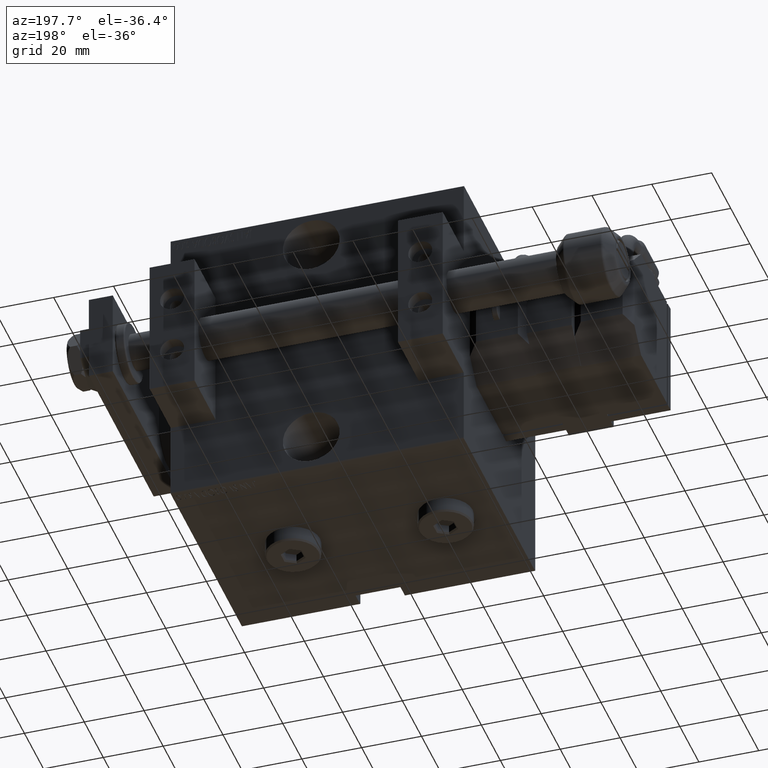
[diagram: clean part render]
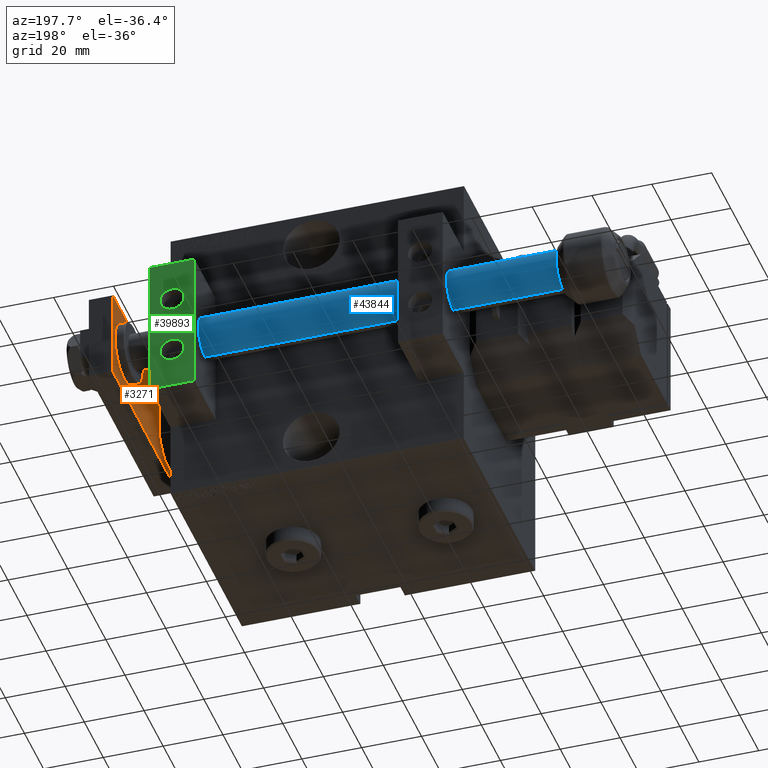
[diagram: same view with three faces highlighted in distinct colors, each labeled with its STEP entity id]
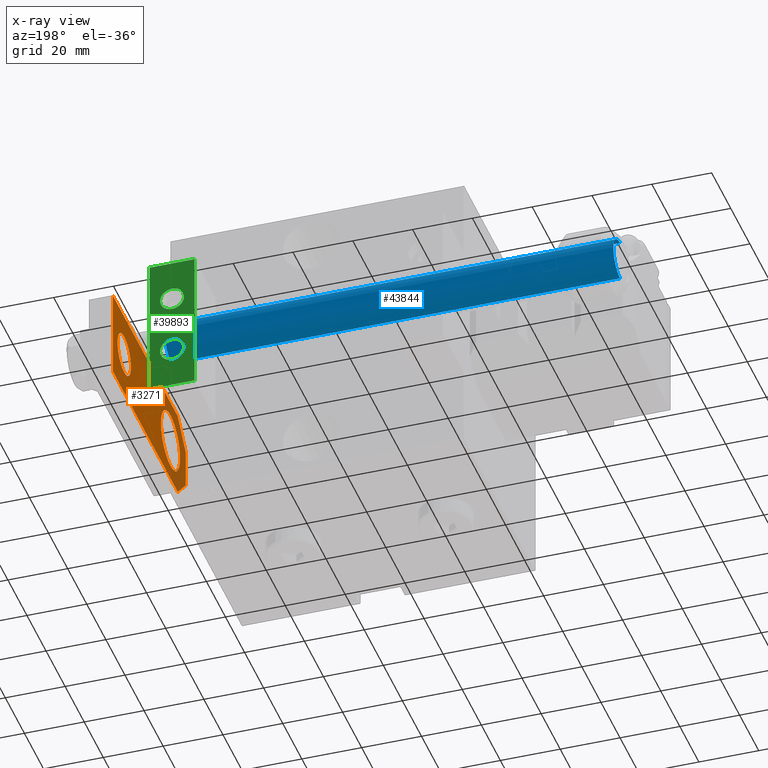
[diagram: x-ray of the same camera — body ghosted, the three highlighted faces saturated]
A machine part, auxiliary view with three faces highlighted in distinct colors.
The next image is the same camera in x-ray (body ghosted, the three faces saturated) — at least one of them is partly hidden behind the body in this view.
Their STEP definitions:

[orange] entity #3271 — the highlighted planar face has unit normal (1, 0, -0).
#496 = VERTEX_POINT ( 'NONE', #3571 ) ;
#993 = VERTEX_POINT ( 'NONE', #22382 ) ;
#1018 = EDGE_CURVE ( 'NONE', #993, #46645, #30414, .T. ) ;
#1646 = DIRECTION ( 'NONE',  ( 1.000000000000000000, 0.000000000000000000, 0.000000000000000000 ) ) ;
#3197 = DIRECTION ( 'NONE',  ( 0.000000000000000000, 0.000000000000000000, 1.000000000000000000 ) ) ;
#3271 = ADVANCED_FACE ( 'NONE', ( #28020, #20498, #12477 ), #47987, .F. ) ;
#3571 = CARTESIAN_POINT ( 'NONE',  ( -7.000000000000002665, 64.50000000000000000, 0.000000000000000000 ) ) ;
#4935 = EDGE_CURVE ( 'NONE', #19267, #12156, #18924, .T. ) ;
#5240 = EDGE_CURVE ( 'NONE', #6810, #26326, #9690, .T. ) ;
#5496 = EDGE_CURVE ( 'NONE', #12156, #19267, #14013, .T. ) ;
#5803 = CARTESIAN_POINT ( 'NONE',  ( -14.99999999999999822, 76.50000000000000000, 0.000000000000000000 ) ) ;
#6810 = VERTEX_POINT ( 'NONE', #29596 ) ;
#7253 = CARTESIAN_POINT ( 'NONE',  ( 15.00000000000000888, 9.629649721936179265E-32, 0.000000000000000000 ) ) ;
#7309 = CARTESIAN_POINT ( 'NONE',  ( 15.00000000000000355, 76.50000000000000000, 0.000000000000000000 ) ) ;
#7455 = EDGE_CURVE ( 'NONE', #7713, #26326, #28833, .T. ) ;
#7504 = LINE ( 'NONE', #7253, #40065 ) ;
#7713 = VERTEX_POINT ( 'NONE', #31658 ) ;
#8864 = ORIENTED_EDGE ( 'NONE', *, *, #25929, .T. ) ;
#9439 = EDGE_LOOP ( 'NONE', ( #8864, #13048 ) ) ;
#9637 = ORIENTED_EDGE ( 'NONE', *, *, #1018, .F. ) ;
#9690 = LINE ( 'NONE', #37177, #14792 ) ;
#9960 = CARTESIAN_POINT ( 'NONE',  ( 0.000000000000000000, 16.00000000000000000, 0.000000000000000000 ) ) ;
#10059 = CARTESIAN_POINT ( 'NONE',  ( 1.963948872468190046E-17, 64.50000000000000000, 0.000000000000000000 ) ) ;
#10319 = DIRECTION ( 'NONE',  ( 1.000000000000000000, 0.000000000000000000, 0.000000000000000000 ) ) ;
#10602 = VECTOR ( 'NONE', #16662, 1000.000000000000114 ) ;
#10659 = AXIS2_PLACEMENT_3D ( 'NONE', #46750, #20022, #11236 ) ;
#10898 = LINE ( 'NONE', #18925, #13352 ) ;
#10906 = CARTESIAN_POINT ( 'NONE',  ( -15.00000000000000711, 8.500000000000021316, 0.000000000000000000 ) ) ;
#11117 = ORIENTED_EDGE ( 'NONE', *, *, #31462, .T. ) ;
#11236 = DIRECTION ( 'NONE',  ( 1.000000000000000000, 0.000000000000000000, 0.000000000000000000 ) ) ;
#11403 = DIRECTION ( 'NONE',  ( -6.802837160693361638E-17, 1.000000000000000000, 0.000000000000000000 ) ) ;
#12156 = VERTEX_POINT ( 'NONE', #45176 ) ;
#12477 = FACE_BOUND ( 'NONE', #16604, .T. ) ;
#13048 = ORIENTED_EDGE ( 'NONE', *, *, #22338, .T. ) ;
#13352 = VECTOR ( 'NONE', #35005, 1000.000000000000000 ) ;
#13998 = CIRCLE ( 'NONE', #10659, 7.000000000000002665 ) ;
#14013 = CIRCLE ( 'NONE', #25584, 10.00000000000000178 ) ;
#14792 = VECTOR ( 'NONE', #1646, 1000.000000000000000 ) ;
#14930 = CARTESIAN_POINT ( 'NONE',  ( 0.000000000000000000, 16.00000000000000000, 0.000000000000000000 ) ) ;
#15784 = ORIENTED_EDGE ( 'NONE', *, *, #42686, .F. ) ;
#16604 = EDGE_LOOP ( 'NONE', ( #26120, #26516 ) ) ;
#16662 = DIRECTION ( 'NONE',  ( -0.7071067811865489050, -0.7071067811865461294, -0.000000000000000000 ) ) ;
#18014 = CARTESIAN_POINT ( 'NONE',  ( 15.00000000000000355, 76.50000000000000000, 0.000000000000000000 ) ) ;
#18924 = CIRCLE ( 'NONE', #28832, 10.00000000000000178 ) ;
#18925 = CARTESIAN_POINT ( 'NONE',  ( -6.500000000000007105, 9.629649721936179265E-32, 0.000000000000000000 ) ) ;
#19267 = VERTEX_POINT ( 'NONE', #47776 ) ;
#19695 = AXIS2_PLACEMENT_3D ( 'NONE', #50671, #20253, #27072 ) ;
#20022 = DIRECTION ( 'NONE',  ( 0.000000000000000000, 0.000000000000000000, 1.000000000000000000 ) ) ;
#20253 = DIRECTION ( 'NONE',  ( -0.000000000000000000, 0.000000000000000000, 1.000000000000000000 ) ) ;
#20271 = CIRCLE ( 'NONE', #28588, 7.000000000000002665 ) ;
#20498 = FACE_BOUND ( 'NONE', #9439, .T. ) ;
#22195 = DIRECTION ( 'NONE',  ( 1.000000000000000000, 0.000000000000000000, 0.000000000000000000 ) ) ;
#22338 = EDGE_CURVE ( 'NONE', #28969, #496, #20271, .T. ) ;
#22382 = CARTESIAN_POINT ( 'NONE',  ( -14.99999999999999822, 76.50000000000000000, 0.000000000000000000 ) ) ;
#25584 = AXIS2_PLACEMENT_3D ( 'NONE', #9960, #3197, #33824 ) ;
#25929 = EDGE_CURVE ( 'NONE', #496, #28969, #13998, .T. ) ;
#26079 = DIRECTION ( 'NONE',  ( 0.000000000000000000, 0.000000000000000000, 1.000000000000000000 ) ) ;
#26120 = ORIENTED_EDGE ( 'NONE', *, *, #5496, .T. ) ;
#26326 = VERTEX_POINT ( 'NONE', #34651 ) ;
#26516 = ORIENTED_EDGE ( 'NONE', *, *, #4935, .T. ) ;
#26695 = VERTEX_POINT ( 'NONE', #18014 ) ;
#27072 = DIRECTION ( 'NONE',  ( 1.000000000000000000, 0.000000000000000000, 0.000000000000000000 ) ) ;
#27271 = DIRECTION ( 'NONE',  ( -1.000000000000000000, 0.000000000000000000, 0.000000000000000000 ) ) ;
#28020 = FACE_OUTER_BOUND ( 'NONE', #49950, .T. ) ;
#28588 = AXIS2_PLACEMENT_3D ( 'NONE', #10059, #29495, #10319 ) ;
#28832 = AXIS2_PLACEMENT_3D ( 'NONE', #14930, #26079, #22195 ) ;
#28833 = LINE ( 'NONE', #41033, #10602 ) ;
#28969 = VERTEX_POINT ( 'NONE', #40447 ) ;
#29495 = DIRECTION ( 'NONE',  ( 0.000000000000000000, 0.000000000000000000, 1.000000000000000000 ) ) ;
#29596 = CARTESIAN_POINT ( 'NONE',  ( -6.500000000000007105, 9.629649721936179265E-32, 0.000000000000000000 ) ) ;
#30165 = DIRECTION ( 'NONE',  ( -1.360567432138672328E-16, -1.000000000000000000, 0.000000000000000000 ) ) ;
#30414 = LINE ( 'NONE', #5803, #36951 ) ;
#30457 = ORIENTED_EDGE ( 'NONE', *, *, #31119, .F. ) ;
#31119 = EDGE_CURVE ( 'NONE', #26695, #993, #42842, .T. ) ;
#31462 = EDGE_CURVE ( 'NONE', #6810, #46645, #10898, .T. ) ;
#31658 = CARTESIAN_POINT ( 'NONE',  ( 15.00000000000000888, 8.500000000000000000, 0.000000000000000000 ) ) ;
#33824 = DIRECTION ( 'NONE',  ( 1.000000000000000000, 0.000000000000000000, 0.000000000000000000 ) ) ;
#34651 = CARTESIAN_POINT ( 'NONE',  ( 6.499999999999972466, 9.629649721936179265E-32, 0.000000000000000000 ) ) ;
#35005 = DIRECTION ( 'NONE',  ( -0.7071067811865465735, 0.7071067811865484609, -0.000000000000000000 ) ) ;
#36043 = ORIENTED_EDGE ( 'NONE', *, *, #5240, .F. ) ;
#36951 = VECTOR ( 'NONE', #30165, 1000.000000000000000 ) ;
#37177 = CARTESIAN_POINT ( 'NONE',  ( -15.00000000000000888, 9.629649721936179265E-32, 0.000000000000000000 ) ) ;
#40065 = VECTOR ( 'NONE', #11403, 1000.000000000000000 ) ;
#40447 = CARTESIAN_POINT ( 'NONE',  ( 7.000000000000002665, 64.50000000000000000, 0.000000000000000000 ) ) ;
#41033 = CARTESIAN_POINT ( 'NONE',  ( 15.00000000000000888, 8.500000000000000000, 0.000000000000000000 ) ) ;
#42686 = EDGE_CURVE ( 'NONE', #7713, #26695, #7504, .T. ) ;
#42842 = LINE ( 'NONE', #7309, #47244 ) ;
#45176 = CARTESIAN_POINT ( 'NONE',  ( -10.00000000000000178, 16.00000000000000000, 0.000000000000000000 ) ) ;
#46645 = VERTEX_POINT ( 'NONE', #10906 ) ;
#46750 = CARTESIAN_POINT ( 'NONE',  ( 1.963948872468190046E-17, 64.50000000000000000, 0.000000000000000000 ) ) ;
#46980 = ORIENTED_EDGE ( 'NONE', *, *, #7455, .T. ) ;
#47244 = VECTOR ( 'NONE', #27271, 1000.000000000000000 ) ;
#47776 = CARTESIAN_POINT ( 'NONE',  ( 10.00000000000000178, 16.00000000000000000, 0.000000000000000000 ) ) ;
#47987 = PLANE ( 'NONE',  #19695 ) ;
#49950 = EDGE_LOOP ( 'NONE', ( #36043, #11117, #9637, #30457, #15784, #46980 ) ) ;
#50671 = CARTESIAN_POINT ( 'NONE',  ( 0.000000000000000000, 0.000000000000000000, 0.000000000000000000 ) ) ;

[blue] entity #43844 — the highlighted cylindrical surface (edge-blend (fillet) strip) has radius 7 mm, axis along (1, -0, -0).
#749 = EDGE_CURVE ( 'NONE', #42917, #46878, #22445, .T. ) ;
#2291 = DIRECTION ( 'NONE',  ( -0.000000000000000000, -0.000000000000000000, -1.000000000000000000 ) ) ;
#2544 = EDGE_CURVE ( 'NONE', #3997, #37020, #17184, .T. ) ;
#3128 = ORIENTED_EDGE ( 'NONE', *, *, #10648, .T. ) ;
#3176 = CIRCLE ( 'NONE', #46220, 7.000000000000000000 ) ;
#3373 = ORIENTED_EDGE ( 'NONE', *, *, #2544, .T. ) ;
#3408 = VERTEX_POINT ( 'NONE', #10634 ) ;
#3778 = CARTESIAN_POINT ( 'NONE',  ( 7.000000000000000000, 8.572527594031473190E-16, 151.9999999999999432 ) ) ;
#3795 = VECTOR ( 'NONE', #26588, 1000.000000000000000 ) ;
#3997 = VERTEX_POINT ( 'NONE', #24207 ) ;
#4923 = CIRCLE ( 'NONE', #51293, 7.000000000000000000 ) ;
#7147 = DIRECTION ( 'NONE',  ( 0.000000000000000000, 0.000000000000000000, -1.000000000000000000 ) ) ;
#8163 = DIRECTION ( 'NONE',  ( 1.000000000000000000, -1.776356839400250465E-15, 0.000000000000000000 ) ) ;
#8537 = EDGE_LOOP ( 'NONE', ( #3373, #11217, #44385, #22222, #44133, #3128 ) ) ;
#9501 = AXIS2_PLACEMENT_3D ( 'NONE', #46612, #2291, #26656 ) ;
#10266 = CARTESIAN_POINT ( 'NONE',  ( 0.000000000000000000, 0.000000000000000000, 151.9999999999999432 ) ) ;
#10446 = CARTESIAN_POINT ( 'NONE',  ( 0.000000000000000000, 0.000000000000000000, 2.000000000000029310 ) ) ;
#10634 = CARTESIAN_POINT ( 'NONE',  ( -0.4999999999999992784, 6.982120021884415273, 152.0000000000000000 ) ) ;
#10648 = EDGE_CURVE ( 'NONE', #3408, #3997, #4923, .T. ) ;
#10777 = CARTESIAN_POINT ( 'NONE',  ( -7.000000000000000000, 0.000000000000000000, 153.0000000000000000 ) ) ;
#11217 = ORIENTED_EDGE ( 'NONE', *, *, #49292, .T. ) ;
#11564 = CARTESIAN_POINT ( 'NONE',  ( 7.000000000000000000, 8.572527594031473190E-16, 2.000000000000029310 ) ) ;
#13961 = CARTESIAN_POINT ( 'NONE',  ( -7.000000000000000000, 0.000000000000000000, 151.9999999999999432 ) ) ;
#14496 = CARTESIAN_POINT ( 'NONE',  ( 7.000000000000000000, 8.572527594031473190E-16, 153.0000000000000000 ) ) ;
#15191 = CARTESIAN_POINT ( 'NONE',  ( -7.000000000000000000, 0.000000000000000000, 2.000000000000029310 ) ) ;
#17184 = CIRCLE ( 'NONE', #42880, 7.000000000000000000 ) ;
#21972 = VECTOR ( 'NONE', #30302, 1000.000000000000000 ) ;
#22222 = ORIENTED_EDGE ( 'NONE', *, *, #749, .F. ) ;
#22445 = LINE ( 'NONE', #10777, #3795 ) ;
#22512 = FACE_OUTER_BOUND ( 'NONE', #8537, .T. ) ;
#22869 = DIRECTION ( 'NONE',  ( 1.000000000000000000, 0.000000000000000000, 0.000000000000000000 ) ) ;
#24207 = CARTESIAN_POINT ( 'NONE',  ( 0.5000000000000041078, 6.982120021884470340, 151.9999999999999432 ) ) ;
#25571 = EDGE_CURVE ( 'NONE', #42917, #3408, #3176, .T. ) ;
#26067 = DIRECTION ( 'NONE',  ( 1.000000000000000000, 2.842170943040400743E-14, 0.000000000000000000 ) ) ;
#26588 = DIRECTION ( 'NONE',  ( -0.000000000000000000, -0.000000000000000000, -1.000000000000000000 ) ) ;
#26656 = DIRECTION ( 'NONE',  ( -1.000000000000000000, 0.000000000000000000, 0.000000000000000000 ) ) ;
#29323 = AXIS2_PLACEMENT_3D ( 'NONE', #10446, #50356, #22869 ) ;
#29542 = VERTEX_POINT ( 'NONE', #11564 ) ;
#30302 = DIRECTION ( 'NONE',  ( -0.000000000000000000, -0.000000000000000000, -1.000000000000000000 ) ) ;
#33959 = DIRECTION ( 'NONE',  ( 0.000000000000000000, 0.000000000000000000, -1.000000000000000000 ) ) ;
#34447 = CYLINDRICAL_SURFACE ( 'NONE', #9501, 7.000000000000000000 ) ;
#37020 = VERTEX_POINT ( 'NONE', #3778 ) ;
#42264 = EDGE_CURVE ( 'NONE', #29542, #46878, #49217, .T. ) ;
#42880 = AXIS2_PLACEMENT_3D ( 'NONE', #45098, #33959, #45876 ) ;
#42917 = VERTEX_POINT ( 'NONE', #13961 ) ;
#43183 = CARTESIAN_POINT ( 'NONE',  ( 0.000000000000000000, 0.000000000000000000, 151.9999999999999432 ) ) ;
#43844 = ADVANCED_FACE ( 'NONE', ( #22512 ), #34447, .T. ) ;
#44133 = ORIENTED_EDGE ( 'NONE', *, *, #25571, .T. ) ;
#44385 = ORIENTED_EDGE ( 'NONE', *, *, #42264, .T. ) ;
#45098 = CARTESIAN_POINT ( 'NONE',  ( 0.000000000000000000, 0.000000000000000000, 151.9999999999999432 ) ) ;
#45876 = DIRECTION ( 'NONE',  ( 1.000000000000000000, -1.776356839400250465E-15, 0.000000000000000000 ) ) ;
#46220 = AXIS2_PLACEMENT_3D ( 'NONE', #43183, #7147, #8163 ) ;
#46612 = CARTESIAN_POINT ( 'NONE',  ( 0.000000000000000000, 0.000000000000000000, 153.0000000000000000 ) ) ;
#46878 = VERTEX_POINT ( 'NONE', #15191 ) ;
#49217 = CIRCLE ( 'NONE', #29323, 7.000000000000000000 ) ;
#49292 = EDGE_CURVE ( 'NONE', #37020, #29542, #50014, .T. ) ;
#49416 = DIRECTION ( 'NONE',  ( 0.000000000000000000, 0.000000000000000000, -1.000000000000000000 ) ) ;
#50014 = LINE ( 'NONE', #14496, #21972 ) ;
#50356 = DIRECTION ( 'NONE',  ( -0.000000000000000000, -0.000000000000000000, 1.000000000000000000 ) ) ;
#51293 = AXIS2_PLACEMENT_3D ( 'NONE', #10266, #49416, #26067 ) ;

[green] entity #39893 — the highlighted planar face has unit normal (0, 1, 0).
#608 = DIRECTION ( 'NONE',  ( 0.000000000000000000, 0.000000000000000000, 1.000000000000000000 ) ) ;
#1090 = AXIS2_PLACEMENT_3D ( 'NONE', #11851, #27658, #7958 ) ;
#1731 = CARTESIAN_POINT ( 'NONE',  ( 15.00000000000000000, 11.00000000000000355, 24.00000000000000711 ) ) ;
#3050 = PLANE ( 'NONE',  #1090 ) ;
#3723 = EDGE_CURVE ( 'NONE', #6100, #15285, #32963, .T. ) ;
#5107 = LINE ( 'NONE', #1731, #8745 ) ;
#6100 = VERTEX_POINT ( 'NONE', #14177 ) ;
#7586 = EDGE_CURVE ( 'NONE', #39028, #26604, #34290, .T. ) ;
#7958 = DIRECTION ( 'NONE',  ( 0.000000000000000000, -0.000000000000000000, 1.000000000000000000 ) ) ;
#8718 = DIRECTION ( 'NONE',  ( 0.000000000000000000, 0.000000000000000000, 1.000000000000000000 ) ) ;
#8745 = VECTOR ( 'NONE', #13149, 1000.000000000000000 ) ;
#8958 = VECTOR ( 'NONE', #42309, 1000.000000000000000 ) ;
#9226 = DIRECTION ( 'NONE',  ( 3.081487911019577365E-33, -1.000000000000000000, 4.418865812115433188E-17 ) ) ;
#9445 = DIRECTION ( 'NONE',  ( 0.000000000000000000, 1.000000000000000000, -6.065466699219605527E-17 ) ) ;
#10467 = CIRCLE ( 'NONE', #45242, 4.000000000000000888 ) ;
#10734 = VECTOR ( 'NONE', #49515, 1000.000000000000000 ) ;
#10813 = EDGE_CURVE ( 'NONE', #28198, #26604, #30971, .T. ) ;
#11686 = EDGE_CURVE ( 'NONE', #47696, #20175, #33107, .T. ) ;
#11851 = CARTESIAN_POINT ( 'NONE',  ( 15.00000000000000000, 11.00000000000000355, 24.00000000000000711 ) ) ;
#13116 = CARTESIAN_POINT ( 'NONE',  ( 7.500000000000001776, 11.00000000000000355, 10.00000000000000178 ) ) ;
#13149 = DIRECTION ( 'NONE',  ( -1.000000000000000000, -0.000000000000000000, -0.000000000000000000 ) ) ;
#14177 = CARTESIAN_POINT ( 'NONE',  ( 7.500000000000002665, 11.00000000000000355, 6.000000000000000888 ) ) ;
#15285 = VERTEX_POINT ( 'NONE', #45628 ) ;
#15707 = VECTOR ( 'NONE', #30714, 1000.000000000000000 ) ;
#15878 = CARTESIAN_POINT ( 'NONE',  ( 7.500000000000002665, 11.00000000000000355, -14.00000000000000178 ) ) ;
#17999 = CARTESIAN_POINT ( 'NONE',  ( 7.500000000000001776, 11.00000000000000355, -10.00000000000000178 ) ) ;
#18012 = ORIENTED_EDGE ( 'NONE', *, *, #50339, .F. ) ;
#18837 = EDGE_LOOP ( 'NONE', ( #30712, #24245 ) ) ;
#20175 = VERTEX_POINT ( 'NONE', #35555 ) ;
#22430 = CARTESIAN_POINT ( 'NONE',  ( 15.00000000000000000, 11.00000000000000355, -23.99999999999999289 ) ) ;
#24245 = ORIENTED_EDGE ( 'NONE', *, *, #3723, .T. ) ;
#25500 = DIRECTION ( 'NONE',  ( 0.000000000000000000, 0.000000000000000000, 1.000000000000000000 ) ) ;
#25517 = CARTESIAN_POINT ( 'NONE',  ( 0.000000000000000000, 11.00000000000000355, -23.99999999999999289 ) ) ;
#25524 = CARTESIAN_POINT ( 'NONE',  ( 7.500000000000001776, 11.00000000000000355, -10.00000000000000178 ) ) ;
#26604 = VERTEX_POINT ( 'NONE', #25517 ) ;
#27329 = DIRECTION ( 'NONE',  ( 3.081487911019577365E-33, -1.000000000000000000, 4.418865812115433188E-17 ) ) ;
#27658 = DIRECTION ( 'NONE',  ( -0.000000000000000000, 1.000000000000000000, 0.000000000000000000 ) ) ;
#28198 = VERTEX_POINT ( 'NONE', #39171 ) ;
#28285 = AXIS2_PLACEMENT_3D ( 'NONE', #31989, #27329, #608 ) ;
#29050 = EDGE_CURVE ( 'NONE', #50264, #28198, #33968, .T. ) ;
#30632 = CARTESIAN_POINT ( 'NONE',  ( 0.000000000000000000, 11.00000000000000355, 24.00000000000000711 ) ) ;
#30684 = EDGE_LOOP ( 'NONE', ( #49584, #39191 ) ) ;
#30712 = ORIENTED_EDGE ( 'NONE', *, *, #34025, .T. ) ;
#30714 = DIRECTION ( 'NONE',  ( -1.000000000000000000, -0.000000000000000000, -0.000000000000000000 ) ) ;
#30971 = LINE ( 'NONE', #22430, #15707 ) ;
#31989 = CARTESIAN_POINT ( 'NONE',  ( 7.500000000000001776, 11.00000000000000355, 10.00000000000000178 ) ) ;
#32242 = ORIENTED_EDGE ( 'NONE', *, *, #29050, .T. ) ;
#32963 = CIRCLE ( 'NONE', #33830, 4.000000000000000000 ) ;
#33078 = EDGE_LOOP ( 'NONE', ( #49854, #18012, #32242, #47187 ) ) ;
#33107 = CIRCLE ( 'NONE', #46345, 4.000000000000000888 ) ;
#33333 = DIRECTION ( 'NONE',  ( 0.000000000000000000, 0.000000000000000000, 1.000000000000000000 ) ) ;
#33830 = AXIS2_PLACEMENT_3D ( 'NONE', #13116, #9226, #8718 ) ;
#33968 = LINE ( 'NONE', #37599, #10734 ) ;
#34025 = EDGE_CURVE ( 'NONE', #15285, #6100, #44887, .T. ) ;
#34290 = LINE ( 'NONE', #30632, #8958 ) ;
#35555 = CARTESIAN_POINT ( 'NONE',  ( 7.500000000000001776, 11.00000000000000355, -6.000000000000000888 ) ) ;
#37599 = CARTESIAN_POINT ( 'NONE',  ( 15.00000000000000000, 11.00000000000000355, 24.00000000000000711 ) ) ;
#39028 = VERTEX_POINT ( 'NONE', #48115 ) ;
#39171 = CARTESIAN_POINT ( 'NONE',  ( 15.00000000000000000, 11.00000000000000355, -23.99999999999999289 ) ) ;
#39191 = ORIENTED_EDGE ( 'NONE', *, *, #11686, .F. ) ;
#39893 = ADVANCED_FACE ( 'NONE', ( #47363, #43483, #50750 ), #3050, .T. ) ;
#42309 = DIRECTION ( 'NONE',  ( 0.000000000000000000, 0.000000000000000000, -1.000000000000000000 ) ) ;
#43483 = FACE_BOUND ( 'NONE', #30684, .T. ) ;
#44887 = CIRCLE ( 'NONE', #28285, 4.000000000000000000 ) ;
#45242 = AXIS2_PLACEMENT_3D ( 'NONE', #17999, #9445, #25500 ) ;
#45628 = CARTESIAN_POINT ( 'NONE',  ( 7.500000000000001776, 11.00000000000000355, 14.00000000000000178 ) ) ;
#46345 = AXIS2_PLACEMENT_3D ( 'NONE', #25524, #49397, #33333 ) ;
#47187 = ORIENTED_EDGE ( 'NONE', *, *, #10813, .T. ) ;
#47363 = FACE_OUTER_BOUND ( 'NONE', #33078, .T. ) ;
#47696 = VERTEX_POINT ( 'NONE', #15878 ) ;
#48115 = CARTESIAN_POINT ( 'NONE',  ( 0.000000000000000000, 11.00000000000000355, 24.00000000000000711 ) ) ;
#48154 = CARTESIAN_POINT ( 'NONE',  ( 15.00000000000000000, 11.00000000000000355, 24.00000000000000711 ) ) ;
#48340 = EDGE_CURVE ( 'NONE', #20175, #47696, #10467, .T. ) ;
#49397 = DIRECTION ( 'NONE',  ( 0.000000000000000000, 1.000000000000000000, -6.065466699219605527E-17 ) ) ;
#49515 = DIRECTION ( 'NONE',  ( 0.000000000000000000, 0.000000000000000000, -1.000000000000000000 ) ) ;
#49584 = ORIENTED_EDGE ( 'NONE', *, *, #48340, .F. ) ;
#49854 = ORIENTED_EDGE ( 'NONE', *, *, #7586, .F. ) ;
#50264 = VERTEX_POINT ( 'NONE', #48154 ) ;
#50339 = EDGE_CURVE ( 'NONE', #50264, #39028, #5107, .T. ) ;
#50750 = FACE_BOUND ( 'NONE', #18837, .T. ) ;